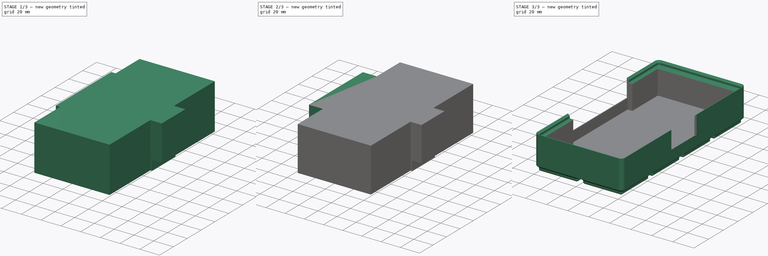
[diagram: build sequence overview — one tinted view per stage of 3, left to right]
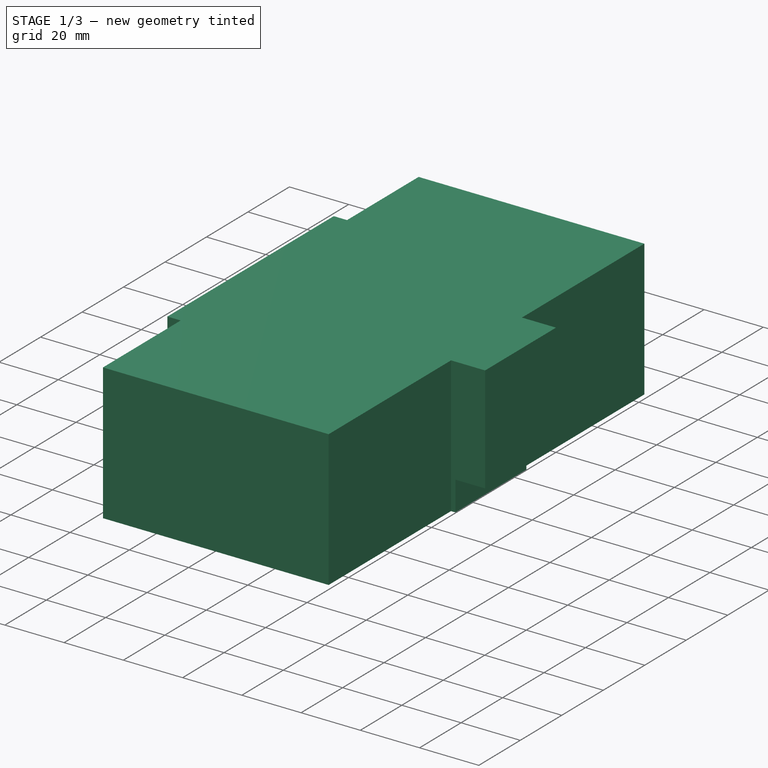
[diagram: stage 1 of 3 — iso view after this stage's code; geometry added in this stage tinted green]
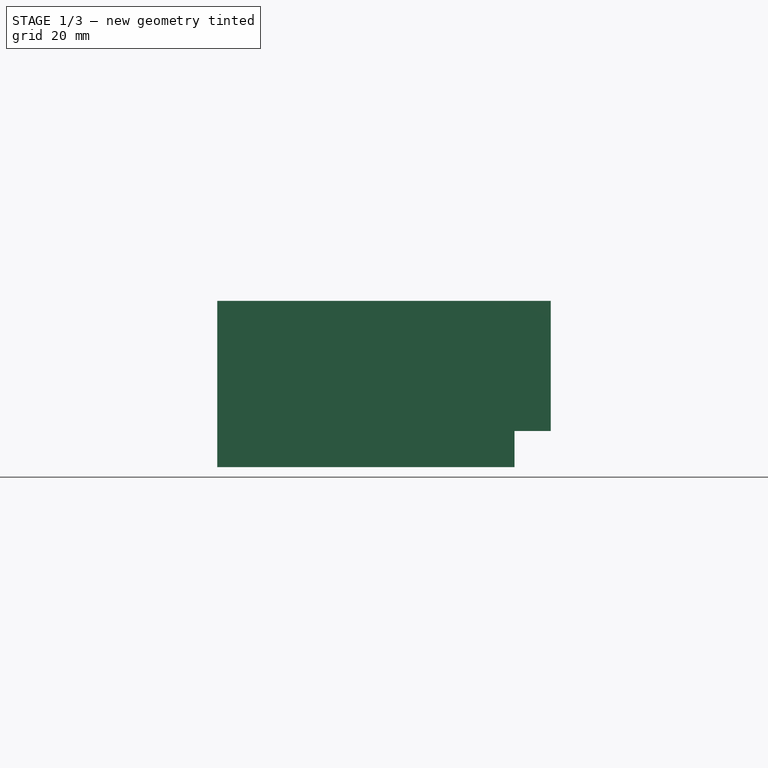
[diagram: stage 1 of 3 — front view after this stage's code; geometry added in this stage tinted green]
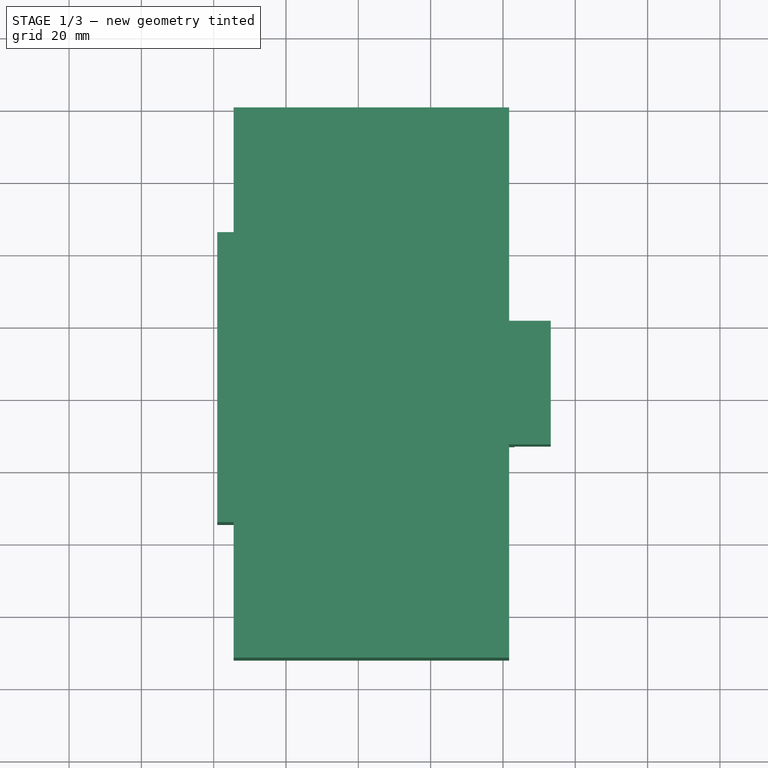
[diagram: stage 1 of 3 — top view after this stage's code; geometry added in this stage tinted green]
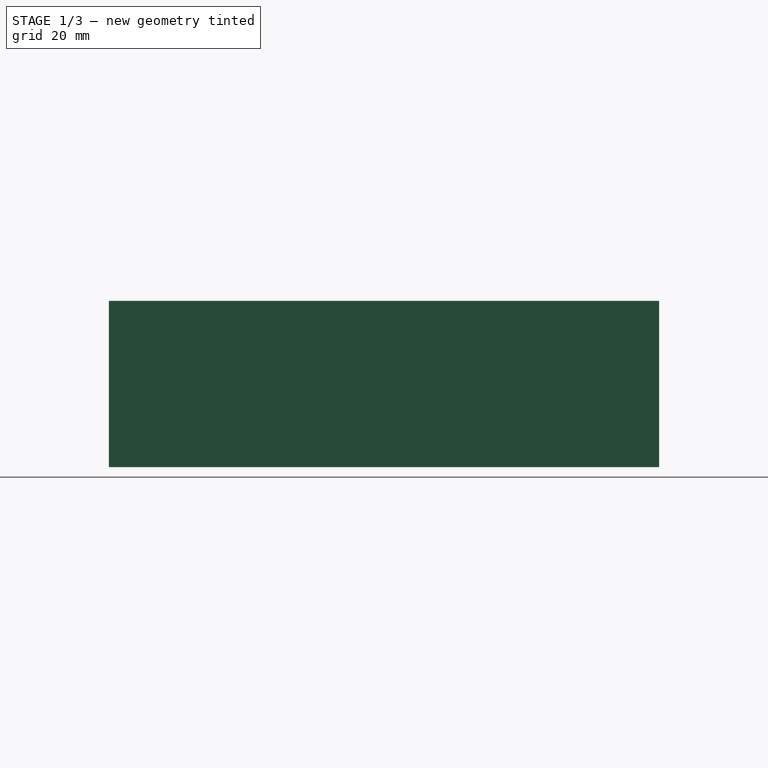
[diagram: stage 1 of 3 — right view after this stage's code; geometry added in this stage tinted green]
FCSTD DOCUMENT  (FreeCAD 1.0R39285 (Git))
Label: gridfinity - amazonbasics precision screwdriver
License: All rights reserved
LicenseURL: https://en.wikipedia.org/wiki/All_rights_reserved
objects: Sketcher::SketchObject×3, PartDesign::Pad×3, PartDesign::Body×2, PartDesign::FeaturePython×1, Part::Cut×1
note: 20 computed .brp shape members not serialized (recipe doc carries the construction recipe); baked Part::Feature solids carry a one-line shape summary decoded from their .brp

FEATURE [PartDesign::Body] Body
  AllowCompound = false
  Group = -> [BinBlank]
  Origin = -> Origin
  Tip = -> BinBlank
FEATURE [Sketcher::SketchObject] Sketch
  ArcFitTolerance = 1e-06
  AttachmentSupport = -> [XY_Plane001]
  FullyConstrained = true
  MakeInternals = false
  MapMode = 5
  sketch-geometry (12):
    g0: LineSegment StartX=1 StartY=125.7 StartZ=0 EndX=1 EndY=45.5 EndZ=0
    g1: LineSegment StartX=1 StartY=45.5 StartZ=0 EndX=5.5 EndY=45.5 EndZ=0
    g2: LineSegment StartX=5.5 StartY=45.5 StartZ=0 EndX=5.5 EndY=8 EndZ=0
    g3: LineSegment StartX=5.5 StartY=8 StartZ=0 EndX=81.7 EndY=8 EndZ=0
    g4: LineSegment StartX=81.7 StartY=8 StartZ=0 EndX=81.7 EndY=67 EndZ=0
    g5: LineSegment StartX=81.7 StartY=67 StartZ=0 EndX=83.2 EndY=67 EndZ=0
    g6: LineSegment StartX=83.2 StartY=67 StartZ=0 EndX=83.2 EndY=101.2 EndZ=0
    g7: LineSegment StartX=83.2 StartY=101.2 StartZ=0 EndX=81.7 EndY=101.2 EndZ=0
    g8: LineSegment StartX=81.7 StartY=101.2 StartZ=0 EndX=81.7 EndY=160.2 EndZ=0
    g9: LineSegment StartX=81.7 StartY=160.2 StartZ=0 EndX=5.5 EndY=160.2 EndZ=0
    g10: LineSegment StartX=5.5 StartY=160.2 StartZ=0 EndX=5.5 EndY=125.7 EndZ=0
    g11: LineSegment StartX=5.5 StartY=125.7 StartZ=0 EndX=1 EndY=125.7 EndZ=0
  constraints (36):
    c: Vertical(g0)
    c: Coincident(g0,g1)
    c: Horizontal(g1)
    c: Coincident(g1,g2)
    c: Vertical(g2)
    c: Coincident(g2,g3)
    c: Horizontal(g3)
    c: Coincident(g3,g4)
    c: Vertical(g4)
    c: Coincident(g4,g5)
    c: Coincident(g5,g6)
    c: Vertical(g6)
    c: Coincident(g6,g7)
    c: Horizontal(g7)
    c: Coincident(g7,g8)
    c: Vertical(g8)
    c: Coincident(g8,g9)
    c: Horizontal(g9)
    c: Coincident(g9,g10)
    c: Vertical(g10)
    c: Coincident(g10,g11)
    c: Coincident(g11,g0)
    c: Horizontal(g11)
    c: Distance(g8) = 59
    c: Distance(g4) = 59
    c: Horizontal(g5)
    c: Distance(g8,g3) = 152.2
    c: Distance(g0) = 80.2
    c: Distance(g2) = 37.5
    c: Distance(g3) = 76.2
    c: Distance(g1) = 4.5
    c: Distance(g5) = 1.5
    c: PointOnObject(g1,g10)
    c: PointOnObject(g4,g8)
    c: DistanceX(g-1,g0) = 1
    c: DistanceY(g-1,g2) = 8
FEATURE [PartDesign::Pad] Pad
  Direction = (0,0,1)
  Length = 46
  Length2 = 10
  Midplane = true
  Profile = -> Sketch
  ReferenceAxis = -> Sketch [N_Axis]
  Refine = true
  Suppressed = false
  Type = 0
FEATURE [Sketcher::SketchObject] Sketch001
  ArcFitTolerance = 1e-06
  AttachmentSupport = -> [Pad]
  ExternalGeometry = -> [Pad]
  FullyConstrained = true
  MakeInternals = false
  MapMode = 5
  Placement = pos=(83.2,0,0) rot=(0.57735,0.57735,0.57735;2.0944rad)
  sketch-geometry (4):
    g0: LineSegment StartX=67 StartY=23 StartZ=0 EndX=67 EndY=-13 EndZ=0
    g1: LineSegment StartX=67 StartY=-13 StartZ=0 EndX=101.2 EndY=-13 EndZ=0
    g2: LineSegment StartX=101.2 StartY=-13 StartZ=0 EndX=101.2 EndY=23 EndZ=0
    g3: LineSegment StartX=101.2 StartY=23 StartZ=0 EndX=67 EndY=23 EndZ=0
  constraints (10):
    c: Coincident(g0,g1)
    c: Coincident(g1,g2)
    c: Coincident(g2,g3)
    c: Coincident(g3,g0)
    c: Vertical(g0)
    c: Vertical(g2)
    c: Horizontal(g1)
    c: Coincident(g0,g-3)
    c: Coincident(g2,g-3)
    c: Distance(g1,g-4) = 10
FEATURE [PartDesign::Pad] Pad001
  BaseFeature = -> Pad
  Direction = (1,0,0)
  Length = 10
  Length2 = 10
  Profile = -> Sketch001
  ReferenceAxis = -> Sketch001 [N_Axis]
  Refine = true
  Suppressed = false
  Type = 0
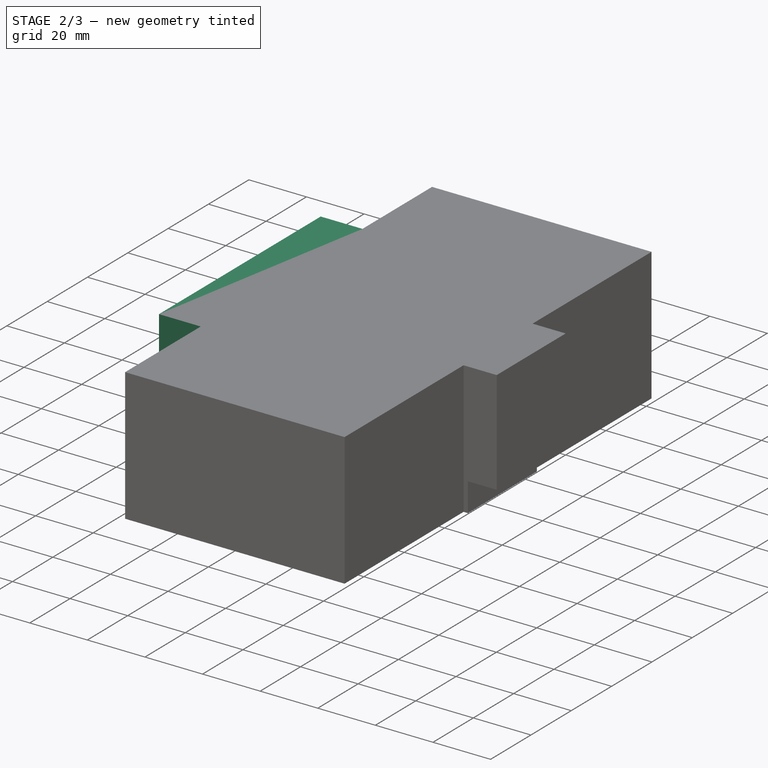
[diagram: stage 2 of 3 — iso view after this stage's code; geometry added in this stage tinted green]
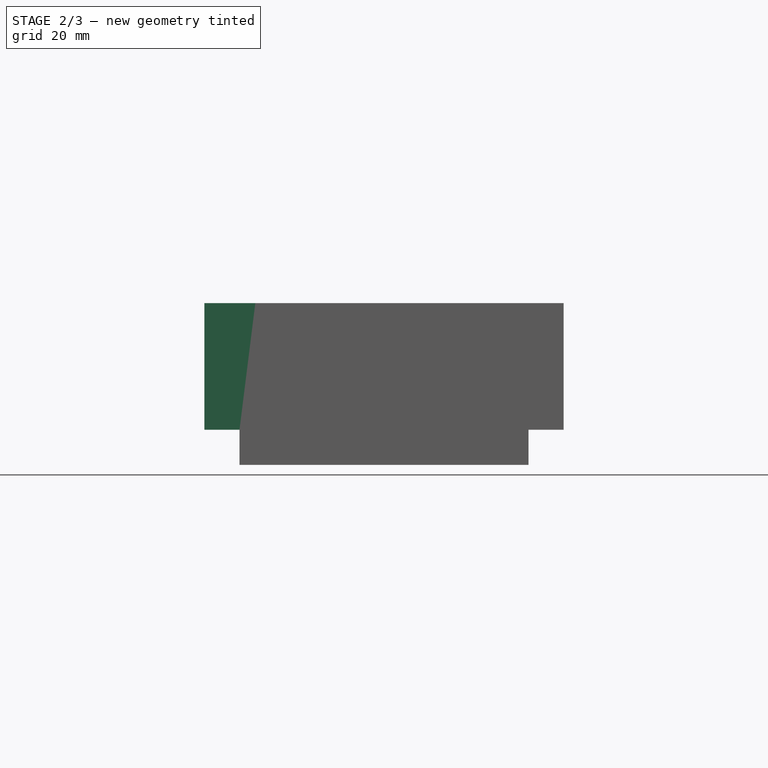
[diagram: stage 2 of 3 — front view after this stage's code; geometry added in this stage tinted green]
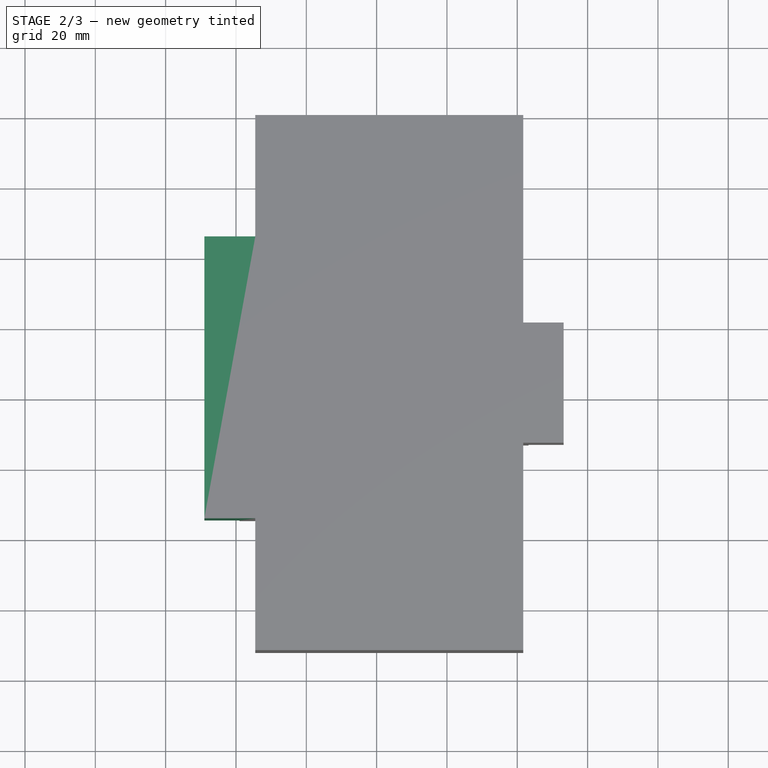
[diagram: stage 2 of 3 — top view after this stage's code; geometry added in this stage tinted green]
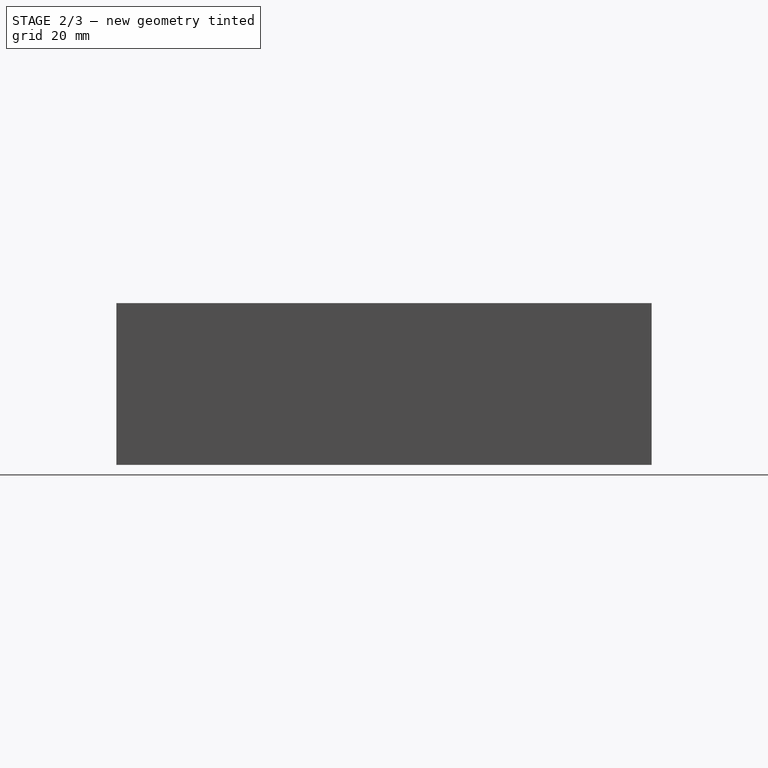
[diagram: stage 2 of 3 — right view after this stage's code; geometry added in this stage tinted green]
FEATURE [Sketcher::SketchObject] Sketch002
  ArcFitTolerance = 1e-06
  AttachmentSupport = -> [Pad001]
  ExternalGeometry = -> [Pad001]
  FullyConstrained = true
  MakeInternals = false
  MapMode = 5
  Placement = pos=(1,0,0) rot=(0.57735,-0.57735,-0.57735;2.0944rad)
  sketch-geometry (4):
    g0: LineSegment StartX=-125.7 StartY=23 StartZ=0 EndX=-125.7 EndY=-13 EndZ=0
    g1: LineSegment StartX=-125.7 StartY=-13 StartZ=0 EndX=-45.5 EndY=-13 EndZ=0
    g2: LineSegment StartX=-45.5 StartY=-13 StartZ=0 EndX=-45.5 EndY=23 EndZ=0
    g3: LineSegment StartX=-45.5 StartY=23 StartZ=0 EndX=-125.7 EndY=23 EndZ=0
  constraints (10):
    c: Coincident(g0,g1)
    c: Coincident(g1,g2)
    c: Coincident(g2,g3)
    c: Coincident(g3,g0)
    c: Vertical(g0)
    c: Vertical(g2)
    c: Horizontal(g1)
    c: Coincident(g0,g-3)
    c: Coincident(g2,g-3)
    c: Distance(g1,g-4) = 10
FEATURE [PartDesign::Pad] Pad002
  BaseFeature = -> Pad001
  Direction = (-1,0,0)
  Length = 10
  Length2 = 10
  Profile = -> Sketch002
  ReferenceAxis = -> Sketch002 [N_Axis]
  Refine = true
  Suppressed = false
  Type = 0
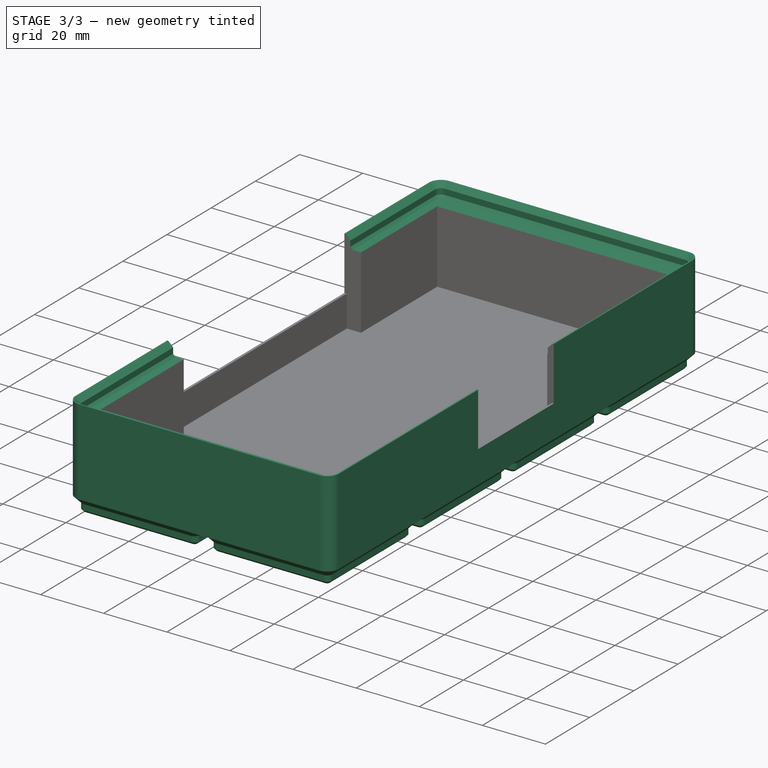
[diagram: stage 3 of 3 — iso view after this stage's code; geometry added in this stage tinted green]
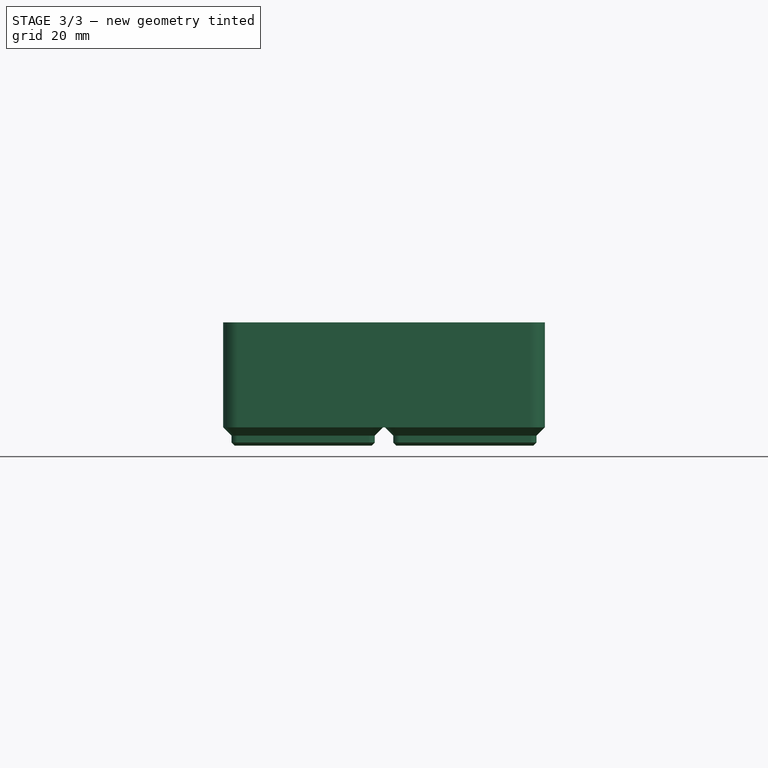
[diagram: stage 3 of 3 — front view after this stage's code; geometry added in this stage tinted green]
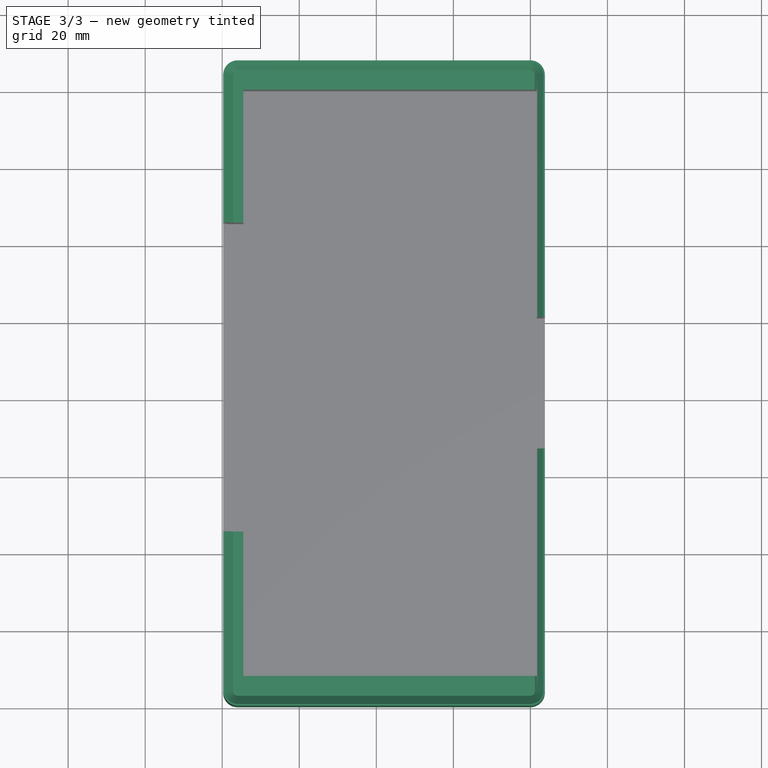
[diagram: stage 3 of 3 — top view after this stage's code; geometry added in this stage tinted green]
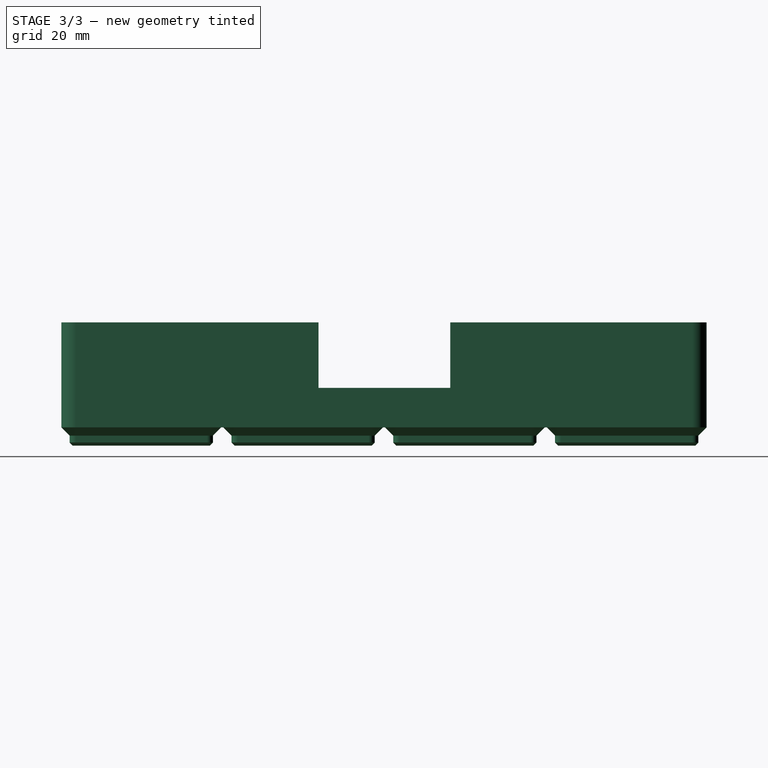
[diagram: stage 3 of 3 — right view after this stage's code; geometry added in this stage tinted green]
FEATURE [PartDesign::FeaturePython] BinBlank  # WARN: FeaturePython — macro-defined, semantics opaque (R4)
  BaseProfileBottomChamfer = 0.8
  BaseProfileHeight = 4.75
  BaseProfileTopChamfer = 2.15
  BaseProfileVerticalSection = 1.8
  Baseplate = false
  BinBottomRadius = 0.8
  BinOuterRadius = 3.75
  BinVerticalRadius = 1.6
  Clearance = 0.25
  CustomHeight = 42
  GenerationLocation = 0
  HeightUnitValue = 7
  HeightUnits = 4
  MagnetHoleDepth = 2.4
  MagnetHoleDiameter = 6.2
  MagnetHoleDistanceFromEdge = 8
  MagnetHoles = true
  MagnetHolesShape = 0
  NonStandardHeight = false
  RecessedTopDepth = 0
  ScrewHoleDepth = 6
  ScrewHoleDiameter = 3
  ScrewHoles = false
  SequentialBridgingLayerHeight = 0.2
  StackingLip = true
  StackingLipBottomChamfer = 0.7
  StackingLipTopChamfer = 1.5
  StackingLipTopLedge = 0.4
  StackingLipVerticalSection = 1.8
  Suppressed = false
  TotalHeight = 28
  WallThickness = 1
  version = 0.11.9
  xGridSize = 42
  xGridUnits = 2
  xLocationOffset = 0
  xTotalWidth = 83.5
  yGridSize = 42
  yGridUnits = 4
  yLocationOffset = 0
  yTotalWidth = 167.5
  expr: BaseProfileHeight = BaseProfileBottomChamfer + BaseProfileVerticalSection + BaseProfileTopChamfer
  expr: TotalHeight = NonStandardHeight == 1 ? CustomHeight : HeightUnits * HeightUnitValue
  expr: xTotalWidth = xGridUnits * xGridSize - (Baseplate == 1 ? 0 mm : 2 * Clearance)
  expr: yTotalWidth = yGridUnits * yGridSize - (Baseplate == 1 ? 0 mm : 2 * Clearance)
FEATURE [PartDesign::Body] Body001  label="amazonbasics precision driver"
  AllowCompound = false
  Group = -> [Sketch,Pad,Sketch001,Pad001,Sketch002,Pad002]
  Origin = -> Origin001
  Tip = -> Pad002
FEATURE [Part::Cut] Cut
  Base = -> Body
  Refine = true
  Tool = -> Body001
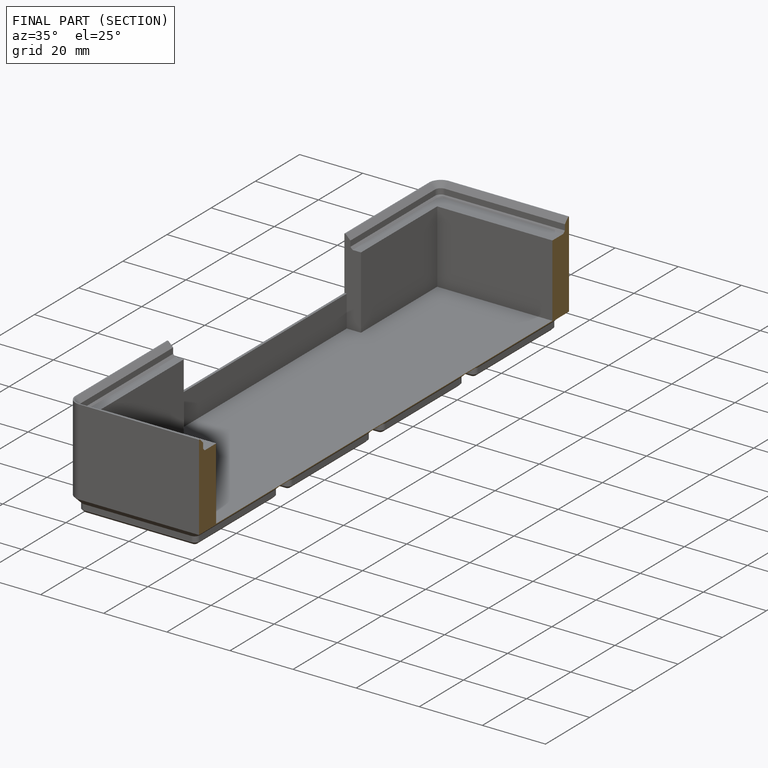
[diagram: finished part — half-section view (interior)]
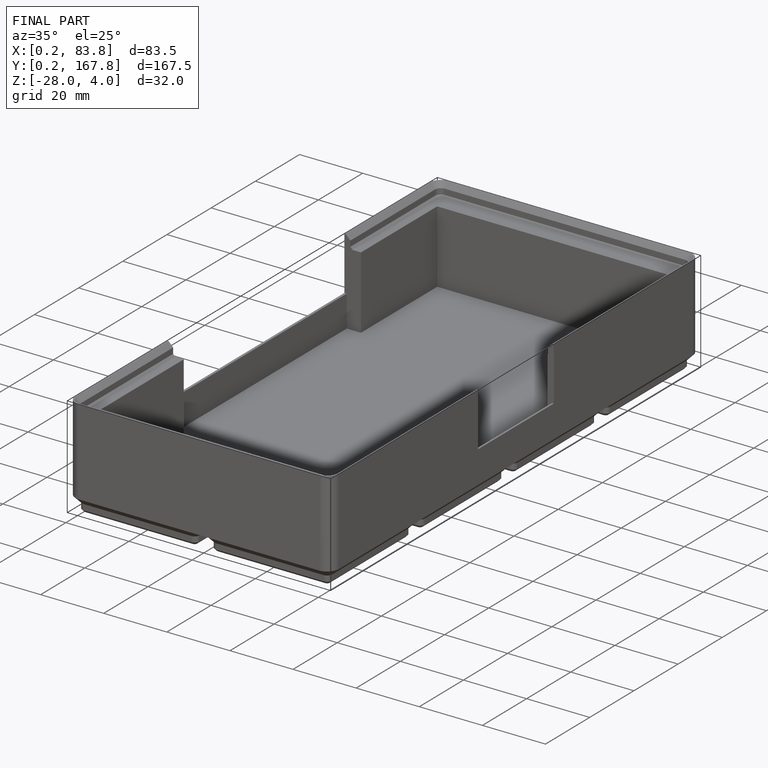
[diagram: finished part — iso view with bounding-box wireframe]
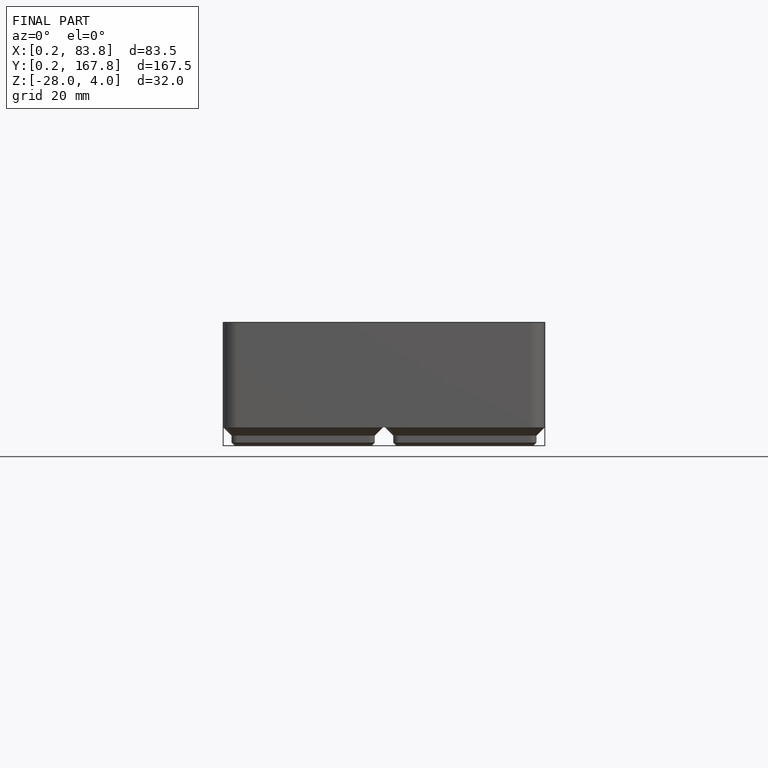
[diagram: finished part — front view with bounding-box wireframe]
